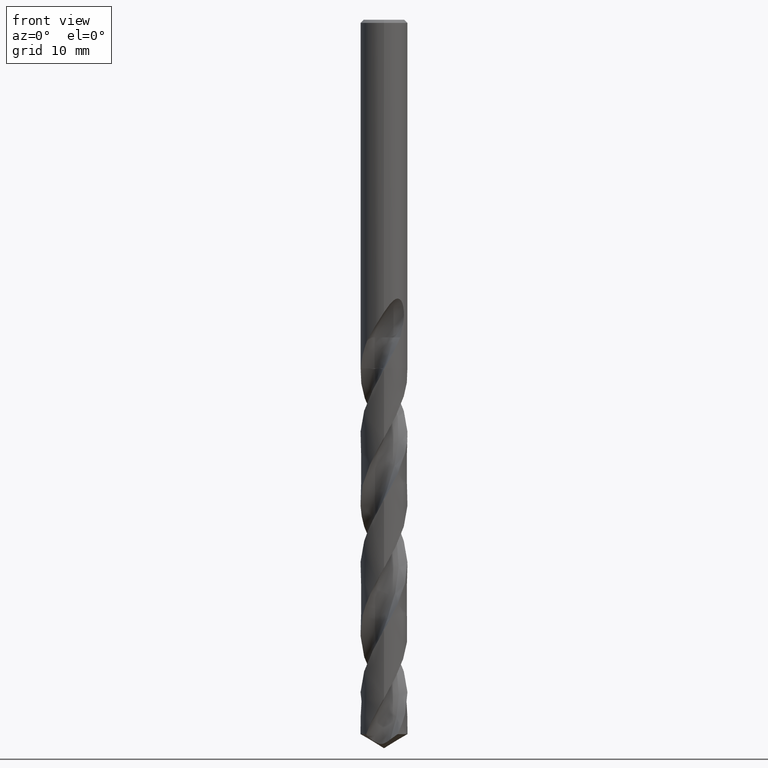
[diagram: clean part render]
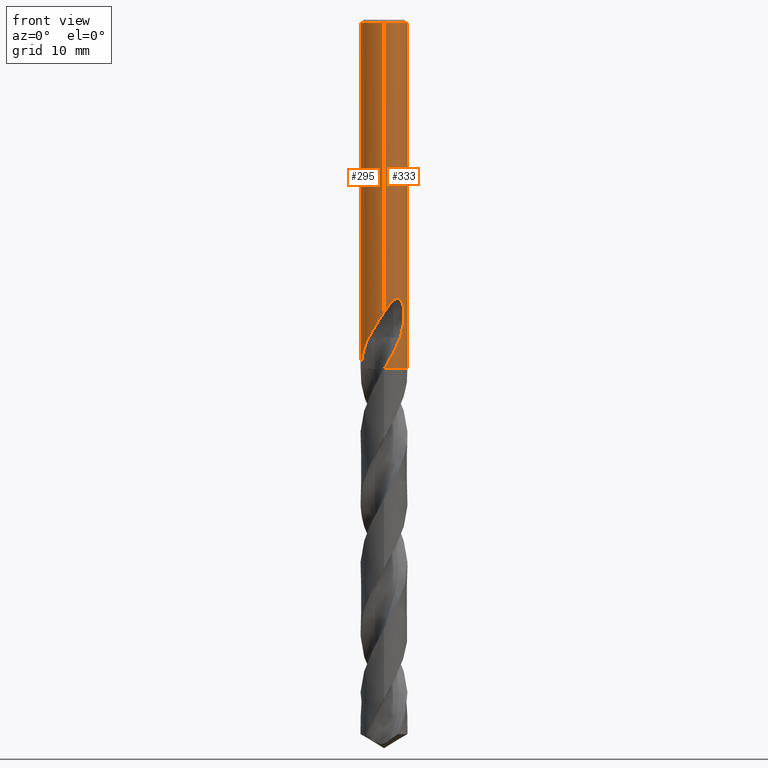
[diagram: same view with one multi-face feature highlighted, each face labeled with its STEP entity id]
A machine part, front view. The highlighted faces form ONE feature: a constant-radius fillet chain: 2 tangent blend faces with common blend radius 3 mm. The faces share edges in the B-rep.
Their STEP definitions:
[1] entity #333 (Cylinder):
#307=EDGE_CURVE('',#611,#703,#831,.T.);
#309=EDGE_CURVE('',#539,#673,#833,.T.);
#333=ADVANCED_FACE('',(#860),#861,.T.);
#377=EDGE_CURVE('',#409,#529,#907,.T.);
#387=EDGE_CURVE('',#633,#393,#917,.T.);
#393=VERTEX_POINT('',#923);
#409=VERTEX_POINT('',#943);
#413=EDGE_CURVE('',#611,#695,#947,.T.);
#425=EDGE_CURVE('',#485,#755,#959,.T.);
#439=EDGE_CURVE('',#737,#673,#975,.T.);
#485=VERTEX_POINT('',#1025);
#505=VERTEX_POINT('',#1046);
#513=VERTEX_POINT('',#1054);
#525=EDGE_CURVE('',#695,#529,#1066,.T.);
#529=VERTEX_POINT('',#1070);
#539=VERTEX_POINT('',#1082);
#541=EDGE_CURVE('',#505,#513,#1084,.T.);
#549=EDGE_CURVE('',#393,#687,#1092,.T.);
#559=VERTEX_POINT('',#1102);
#573=EDGE_CURVE('',#687,#485,#1117,.T.);
#611=VERTEX_POINT('',#1157);
#629=VERTEX_POINT('',#1178);
#633=VERTEX_POINT('',#1182);
#665=EDGE_CURVE('',#539,#755,#1218,.T.);
#673=VERTEX_POINT('',#1228);
#679=EDGE_CURVE('',#629,#559,#1234,.T.);
#685=EDGE_CURVE('',#409,#505,#1242,.T.);
#687=VERTEX_POINT('',#1244);
#693=EDGE_CURVE('',#559,#703,#1250,.T.);
#695=VERTEX_POINT('',#1252);
#703=VERTEX_POINT('',#1263);
#727=EDGE_CURVE('',#737,#629,#1288,.T.);
#737=VERTEX_POINT('',#1298);
#751=EDGE_CURVE('',#513,#633,#1314,.T.);
#755=VERTEX_POINT('',#1318);
#831=CIRCLE('',#1751,3.0);
#833=CIRCLE('',#1754,3.0);
#860=FACE_OUTER_BOUND('',#2234,.T.);
#861=CYLINDRICAL_SURFACE('',#2235,3.0);
#907=LINE('',#2569,#2570);
#917=B_SPLINE_CURVE_WITH_KNOTS('',3,(#2595,#2596,#2597,#2598,#2599,#2600,#2601,#2602),.UNSPECIFIED.,.F.,.F.,(4,2,2,4),(8.17446522132897,8.48751487521068,8.80056452909239,9.43014514523744),.UNSPECIFIED.);
#923=CARTESIAN_POINT('',(1.33721006514658,2.68549236485056,-28.2901657003257));
#943=CARTESIAN_POINT('',(-5.79783325419715E-016,3.0,-29.0310253601033));
#947=B_SPLINE_CURVE_WITH_KNOTS('',3,(#2753,#2754,#2755,#2756,#2757,#2758,#2759,#2760,#2761,#2762,#2763,#2764),.UNSPECIFIED.,.F.,.F.,(4,2,2,2,2,4),(0.0,1.14067468414243,2.36104364645971,3.51415760025873,3.88085131149834,4.65908082273705),.UNSPECIFIED.);
#959=B_SPLINE_CURVE_WITH_KNOTS('',3,(#2910,#2911,#2912,#2913,#2914,#2915,#2916,#2917,#2918,#2919,#2920,#2921,#2922,#2923,#2924,#2925,#2926,#2927,#2928,#2929,#2930,#2931,#2932,#2933,#2934,#2935,#2936),.UNSPECIFIED.,.F.,.F.,(4,2,3,2,2,2,2,2,2,2,2,2,4),(-0.54422824842136,-0.27211412421068,0.0,0.272114124210678,0.544228248421357,0.817906359646674,1.09158447087199,1.36255924571499,1.63353402055798,1.90530456554772,2.17707511053746,2.4488456555272,2.72061620051693),.UNSPECIFIED.);
#975=LINE('',#3751,#3752);
#1025=CARTESIAN_POINT('',(0.799431726384364,2.89152363207533,-26.000000276873));
#1046=CARTESIAN_POINT('',(0.29010312703583,2.98594041730307,-28.9998328990228));
#1054=CARTESIAN_POINT('',(0.873560781758957,2.86999852971612,-27.3198931596091));
#1066=B_SPLINE_CURVE_WITH_KNOTS('',3,(#5981,#5982,#5983,#5984,#5985,#5986,#5987,#5988,#5989,#5990,#5991,#5992,#5993,#5994,#5995,#5996,#5997,#5998,#5999,#6000,#6001,#6002,#6003,#6004,#6005,#6006,#6007,#6008,#6009,#6010),.UNSPECIFIED.,.F.,.F.,(4,2,2,2,2,2,2,2,2,2,2,2,2,2,4),(0.0,1.46983380852507,2.27239678300719,2.99931696905278,3.84382348162455,4.85826881796676,5.73750597834066,6.13594597323084,6.42715702904334,6.70272785476211,7.05230587546433,7.56375269950022,8.29083449400262,8.7666328713728,9.26666465795257),.UNSPECIFIED.);
#1070=CARTESIAN_POINT('',(-8.87362909931036E-013,3.0,-37.3520632578571));
#1082=CARTESIAN_POINT('',(0.0,3.0,-0.399999999999999));
#1084=ELLIPSE('',#6339,9.14398372010932,3.0);
#1092=LINE('',#6368,#6369);
#1102=CARTESIAN_POINT('',(2.08523202784716,-2.15680490310098,-40.541));
#1117=B_SPLINE_CURVE_WITH_KNOTS('',3,(#6654,#6655,#6656,#6657,#6658,#6659,#6660,#6661),.UNSPECIFIED.,.F.,.F.,(4,2,2,4),(0.629580638580865,1.25916127716173,1.57221094126725,1.88526060537277),.UNSPECIFIED.);
#1157=CARTESIAN_POINT('',(2.98273810029039,0.321361828903342,-44.5));
#1178=CARTESIAN_POINT('',(2.44092648989433,-1.74409801070127,-38.8982593158529));
#1182=CARTESIAN_POINT('',(0.873560781758956,2.86999852971612,-28.7587351791531));
#1218=LINE('',#9556,#9557);
#1228=CARTESIAN_POINT('',(3.67381906146713E-016,-3.0,-0.399999999999999));
#1234=B_SPLINE_CURVE_WITH_KNOTS('',3,(#9578,#9579,#9580,#9581),.UNSPECIFIED.,.F.,.F.,(4,4),(0.0,1.72415970165412),.UNSPECIFIED.);
#1242=B_SPLINE_CURVE_WITH_KNOTS('',3,(#9590,#9591,#9592,#9593,#9594,#9595,#9596,#9597,#9598,#9599,#9600,#9601,#9602,#9603,#9604,#9605),.UNSPECIFIED.,.F.,.F.,(4,2,2,2,2,2,2,4),(5.66023402257373,6.29060333517104,6.60504483258975,6.91948633000846,7.23392782742717,7.54836932484587,7.86141901111221,8.17446869737855),.UNSPECIFIED.);
#1244=CARTESIAN_POINT('',(1.33721006514658,2.68549236485057,-26.5150484364821));
#1250=B_SPLINE_CURVE_WITH_KNOTS('',3,(#9663,#9664,#9665,#9666,#9667,#9668,#9669,#9670,#9671,#9672,#9673,#9674),.UNSPECIFIED.,.F.,.F.,(4,2,2,2,2,4),(0.0,0.59950892662962,1.14112145611253,1.94427165933441,3.13841279620025,4.33640038811037),.UNSPECIFIED.);
#1252=CARTESIAN_POINT('',(1.91164679377282,2.31205677608879,-40.541));
#1263=CARTESIAN_POINT('',(0.0675089723868008,-2.99924032692402,-44.5));
#1288=B_SPLINE_CURVE_WITH_KNOTS('',3,(#10533,#10534,#10535,#10536,#10537,#10538,#10539,#10540,#10541,#10542,#10543,#10544,#10545,#10546,#10547,#10548,#10549,#10550,#10551,#10552,#10553,#10554,#10555,#10556,#10557,#10558,#10559,#10560,#10561,#10562),.UNSPECIFIED.,.F.,.F.,(4,2,2,2,2,2,2,2,2,2,2,2,2,2,4),(0.0,1.46983380852507,2.27239678300718,2.99931696905273,3.8438234816247,4.8582688179671,5.73750597834119,6.13594597323147,6.42715702904403,6.70272785476287,7.05230587546514,7.56375269950054,8.29083449400176,8.76663287137125,9.26666465795035),.UNSPECIFIED.);
#1298=CARTESIAN_POINT('',(8.89472333677824E-013,-3.0,-37.3520632578571));
#1314=LINE('',#10840,#10841);
#1318=CARTESIAN_POINT('',(3.1168337840855E-015,3.0,-27.0232688117743));
#1751=AXIS2_PLACEMENT_3D('',#11604,#11605,#11606);
#1754=AXIS2_PLACEMENT_3D('',#11607,#11608,#11609);
#2234=EDGE_LOOP('',(#11637,#11638,#11639,#11640,#11641,#11642,#11643,#11644,#11645,#11646,#11647,#11648,#11649,#11650,#11651,#11652,#11653));
#2235=AXIS2_PLACEMENT_3D('',#11654,#11655,#11656);
#2569=CARTESIAN_POINT('',(-3.67381906146713E-016,3.0,-40.25));
#2570=VECTOR('',#11679,1.0);
#2595=CARTESIAN_POINT('',(0.600330703923334,2.93932016730517,-28.9050364278969));
#2596=CARTESIAN_POINT('',(0.700343038443486,2.91889351228921,-28.8631861412044));
#2597=CARTESIAN_POINT('',(0.795685584213128,2.8940165604303,-28.8114119954011));
#2598=CARTESIAN_POINT('',(0.971352589628262,2.83988055167306,-28.692706383359));
#2599=CARTESIAN_POINT('',(1.0516835476539,2.81066216129401,-28.6257659914415));
#2600=CARTESIAN_POINT('',(1.26543925920527,2.72440179743877,-28.4122346680481));
#2601=CARTESIAN_POINT('',(1.3899740959159,2.66030349847411,-28.2319488826214));
#2602=CARTESIAN_POINT('',(1.47371594109741,2.61307507066968,-28.0321377817992));
#2753=CARTESIAN_POINT('',(2.98273810029039,0.321361828903336,-44.5));
#2754=CARTESIAN_POINT('',(2.96262964440007,0.507999606410196,-44.1693446498703));
#2755=CARTESIAN_POINT('',(2.925294928557,0.690599195003813,-43.8371664418726));
#2756=CARTESIAN_POINT('',(2.81443893102137,1.05743471168353,-43.1607520259877));
#2757=CARTESIAN_POINT('',(2.74127339107533,1.23403217542306,-42.8397163678623));
#2758=CARTESIAN_POINT('',(2.56509382593786,1.56642860687534,-42.1726662415295));
#2759=CARTESIAN_POINT('',(2.46672337956167,1.71587135229155,-41.8403239874505));
#2760=CARTESIAN_POINT('',(2.32847526912318,1.89238721633558,-41.4206871806742));
#2761=CARTESIAN_POINT('',(2.29449527389968,1.9337955683818,-41.3165648820369));
#2762=CARTESIAN_POINT('',(2.15958258673837,2.08697220240877,-40.9681005363908));
#2763=CARTESIAN_POINT('',(2.04835370047521,2.19902524391063,-40.7498067294201));
#2764=CARTESIAN_POINT('',(1.91164679377282,2.31205677608879,-40.541));
#2910=CARTESIAN_POINT('',(0.665621182276714,2.92522622060321,-25.8140957881762));
#2911=CARTESIAN_POINT('',(0.728850563417096,2.91083867849353,-25.877518087557));
#2912=CARTESIAN_POINT('',(0.783900459387161,2.89602337967411,-25.9578702196133));
#2913=CARTESIAN_POINT('',(0.857188692916628,2.87518328740958,-26.1345580124299));
#2914=CARTESIAN_POINT('',(0.875400981188567,2.86943777108584,-26.2309373045166));
#2915=CARTESIAN_POINT('',(0.875400981188567,2.86943777108584,-26.3216420125868));
#2916=CARTESIAN_POINT('',(0.875400981188567,2.86943777108584,-26.412346720657));
#2917=CARTESIAN_POINT('',(0.857188692916629,2.87518328740958,-26.5087260127437));
#2918=CARTESIAN_POINT('',(0.783900459387161,2.89602337967411,-26.6854138055602));
#2919=CARTESIAN_POINT('',(0.728850563417096,2.91083867849353,-26.7657659376165));
#2920=CARTESIAN_POINT('',(0.60202838769231,2.93969645569731,-26.8929750586276));
#2921=CARTESIAN_POINT('',(0.521477859529299,2.95568533572518,-26.9483797636259));
#2922=CARTESIAN_POINT('',(0.344299091050148,2.98152194310932,-27.0221641076746));
#2923=CARTESIAN_POINT('',(0.247628172090375,2.99115403786358,-27.0405166027747));
#2924=CARTESIAN_POINT('',(0.0663244946631876,3.00062654348629,-27.0405166027747));
#2925=CARTESIAN_POINT('',(-0.0299285908853346,3.00115720326599,-27.0224875186921));
#2926=CARTESIAN_POINT('',(-0.206881310600536,2.99416773126077,-26.949244373347));
#2927=CARTESIAN_POINT('',(-0.287593937381961,2.98687212067831,-26.8940404490632));
#2928=CARTESIAN_POINT('',(-0.415200117492863,2.97182576996222,-26.7666805419979));
#2929=CARTESIAN_POINT('',(-0.470604049431396,2.96309385107775,-26.6859121102136));
#2930=CARTESIAN_POINT('',(-0.544183869965539,2.95046729924835,-26.5086992019516));
#2931=CARTESIAN_POINT('',(-0.562348199187247,2.94682278104247,-26.41223219425));
#2932=CARTESIAN_POINT('',(-0.562348199187247,2.94682278104247,-26.2310518309235));
#2933=CARTESIAN_POINT('',(-0.54418386996554,2.95046729924835,-26.134584823222));
#2934=CARTESIAN_POINT('',(-0.4706040494314,2.96309385107775,-25.95737191496));
#2935=CARTESIAN_POINT('',(-0.415200117492863,2.97182576996222,-25.8766034831756));
#2936=CARTESIAN_POINT('',(-0.351303479704285,2.97935997575782,-25.812830162452));
#3751=CARTESIAN_POINT('',(3.67381906146713E-016,-3.0,-40.25));
#3752=VECTOR('',#11765,1.0);
#5981=CARTESIAN_POINT('',(1.91164679377282,2.3120567760888,-40.541));
#5982=CARTESIAN_POINT('',(1.71375575951833,2.47567635717405,-40.1237309200278));
#5983=CARTESIAN_POINT('',(1.486225837873,2.62112280809457,-39.7347016240395));
#5984=CARTESIAN_POINT('',(1.08948145585004,2.79939790357085,-39.0848014893283));
#5985=CARTESIAN_POINT('',(0.946714273149377,2.85068087950859,-38.8561448922827));
#5986=CARTESIAN_POINT('',(0.670335042945774,2.92732506647418,-38.4135249483925));
#5987=CARTESIAN_POINT('',(0.5379570310875,2.95440327743712,-38.2016247371714));
#5988=CARTESIAN_POINT('',(0.251414391582756,2.99348382974488,-37.7449234783706));
#5989=CARTESIAN_POINT('',(0.0948562800467957,3.00265887070915,-37.4965476035652));
#5990=CARTESIAN_POINT('',(-0.252819179254607,2.99534565963354,-36.9651896548675));
#5991=CARTESIAN_POINT('',(-0.458955583756506,2.97272600277571,-36.6628411750703));
#5992=CARTESIAN_POINT('',(-0.856462988645535,2.88137700708898,-36.1642893885912));
#5993=CARTESIAN_POINT('',(-1.07638794081267,2.81178060567446,-35.9210156171277));
#5994=CARTESIAN_POINT('',(-1.40924217176591,2.65091070729522,-35.6932142640234));
#5995=CARTESIAN_POINT('',(-1.51941910433013,2.5901786323122,-35.6369154430279));
#5996=CARTESIAN_POINT('',(-1.71247442146329,2.46512979296181,-35.5936678633664));
#5997=CARTESIAN_POINT('',(-1.79165724831738,2.40818161234519,-35.592860332513));
#5998=CARTESIAN_POINT('',(-1.93913954004226,2.29088024762936,-35.6307109988692));
#5999=CARTESIAN_POINT('',(-2.00364093548821,2.23422602999107,-35.6661993543014));
#6000=CARTESIAN_POINT('',(-2.1349005591831,2.11007273708381,-35.7772383317337));
#6001=CARTESIAN_POINT('',(-2.19562720141664,2.04573338410109,-35.8592206391473));
#6002=CARTESIAN_POINT('',(-2.32001499988605,1.90524369772968,-36.0837136544858));
#6003=CARTESIAN_POINT('',(-2.37946988853635,1.82873701452882,-36.2502211307941));
#6004=CARTESIAN_POINT('',(-2.4912726063027,1.67511256148953,-36.7160905297007));
#6005=CARTESIAN_POINT('',(-2.53169187388303,1.60967593575421,-37.0478764713718));
#6006=CARTESIAN_POINT('',(-2.5516978158648,1.57767585152545,-37.6619314380946));
#6007=CARTESIAN_POINT('',(-2.54699382472898,1.58547551567002,-37.9064790286728));
#6008=CARTESIAN_POINT('',(-2.51376896782865,1.63767237368775,-38.4027884481159));
#6009=CARTESIAN_POINT('',(-2.4841031145768,1.6836708063326,-38.6526821951794));
#6010=CARTESIAN_POINT('',(-2.44092648989434,1.74409801070127,-38.8982593158529));
#6339=AXIS2_PLACEMENT_3D('',#11836,#11837,#11838);
#6368=CARTESIAN_POINT('',(1.33721006514658,2.68549236485056,-27.4026070684039));
#6369=VECTOR('',#11839,1.0);
#6654=CARTESIAN_POINT('',(1.47371594887933,2.61307506628085,-26.7730763684242));
#6655=CARTESIAN_POINT('',(1.38997410067862,2.66030349611674,-26.5732652606136));
#6656=CARTESIAN_POINT('',(1.2654392594963,2.72440179761724,-26.3929794688919));
#6657=CARTESIAN_POINT('',(1.05168354029617,2.81066216411606,-26.1794481382038));
#6658=CARTESIAN_POINT('',(0.971352579549231,2.83988055521709,-26.1125077441098));
#6659=CARTESIAN_POINT('',(0.795685568183073,2.89401656493242,-25.9938021282019));
#6660=CARTESIAN_POINT('',(0.700343019183212,2.91889351702519,-25.9420279807093));
#6661=CARTESIAN_POINT('',(0.600330681290245,2.93932017192779,-25.9001776926585));
#9556=CARTESIAN_POINT('',(-3.67381906146713E-016,3.0,-40.25));
#9557=VECTOR('',#11957,1.0);
#9578=CARTESIAN_POINT('',(2.44092648994695,-1.74409801062763,-38.8982593158818));
#9579=CARTESIAN_POINT('',(2.34420896265217,-1.87945759075297,-39.4483742748423));
#9580=CARTESIAN_POINT('',(2.22763849090267,-2.01912415260341,-40.0017629451952));
#9581=CARTESIAN_POINT('',(2.08523202784716,-2.15680490310097,-40.541));
#9590=CARTESIAN_POINT('',(-1.53050642192579,2.58022287650581,-28.0319811255889));
#9591=CARTESIAN_POINT('',(-1.44691631248335,2.62980577312329,-28.2314887010961));
#9592=CARTESIAN_POINT('',(-1.32276760444366,2.69707077181617,-28.4113258593841));
#9593=CARTESIAN_POINT('',(-1.10973155101076,2.78826898930335,-28.6245951706909));
#9594=CARTESIAN_POINT('',(-1.02948996220254,2.81934349084513,-28.6916117853674));
#9595=CARTESIAN_POINT('',(-0.853932698223486,2.87738531454781,-28.8105216600777));
#9596=CARTESIAN_POINT('',(-0.758609991487904,2.90431263574779,-28.8624240602538));
#9597=CARTESIAN_POINT('',(-0.558469552260233,2.94934446690523,-28.9464055954533));
#9598=CARTESIAN_POINT('',(-0.45345704144638,2.96746268462387,-28.9785511641911));
#9599=CARTESIAN_POINT('',(-0.240810292537893,2.99223469602914,-29.0209924679526));
#9600=CARTESIAN_POINT('',(-0.133171317626829,2.99887501234033,-29.0312723335086));
#9601=CARTESIAN_POINT('',(0.0759830626177196,3.00085245803086,-29.0312723335086));
#9602=CARTESIAN_POINT('',(0.183273473896685,2.99629272230549,-29.0210815541729));
#9603=CARTESIAN_POINT('',(0.395439152728151,2.97573303917486,-28.9788816901513));
#9604=CARTESIAN_POINT('',(0.500318639064907,2.95974677710468,-28.9468871509919));
#9605=CARTESIAN_POINT('',(0.600330982089903,2.93932011049205,-28.9050368602192));
#9663=CARTESIAN_POINT('',(2.08523202784716,-2.15680490310097,-40.541));
#9664=CARTESIAN_POINT('',(2.0180329762615,-2.22177397582791,-40.7176291521816));
#9665=CARTESIAN_POINT('',(1.94545542333406,-2.28601361670368,-40.8976274258709));
#9666=CARTESIAN_POINT('',(1.79153643436237,-2.40813073859073,-41.2449071241646));
#9667=CARTESIAN_POINT('',(1.71686755769616,-2.46198638605419,-41.4013310306106));
#9668=CARTESIAN_POINT('',(1.51937244802069,-2.59062203440033,-41.8101311601484));
#9669=CARTESIAN_POINT('',(1.39712763842929,-2.65843768294719,-42.0552052872972));
#9670=CARTESIAN_POINT('',(1.08456134618211,-2.80469177727086,-42.6659093423474));
#9671=CARTESIAN_POINT('',(0.88778893419132,-2.87315094247835,-43.0325777091419));
#9672=CARTESIAN_POINT('',(0.48260503679309,-2.96825477979043,-43.765330816161));
#9673=CARTESIAN_POINT('',(0.275483221261776,-2.9945590989149,-44.1329294491143));
#9674=CARTESIAN_POINT('',(0.0675089723868081,-2.99924032692402,-44.5));
#10533=CARTESIAN_POINT('',(-1.91164679377282,-2.3120567760888,-40.541));
#10534=CARTESIAN_POINT('',(-1.71375575951833,-2.47567635717405,-40.1237309200278));
#10535=CARTESIAN_POINT('',(-1.486225837873,-2.62112280809456,-39.7347016240395));
#10536=CARTESIAN_POINT('',(-1.08948145585004,-2.79939790357085,-39.0848014893283));
#10537=CARTESIAN_POINT('',(-0.946714273149379,-2.85068087950859,-38.8561448922827));
#10538=CARTESIAN_POINT('',(-0.670335042945776,-2.92732506647418,-38.4135249483925));
#10539=CARTESIAN_POINT('',(-0.537957031087505,-2.95440327743712,-38.2016247371714));
#10540=CARTESIAN_POINT('',(-0.251414391582708,-2.99348382974489,-37.7449234783705));
#10541=CARTESIAN_POINT('',(-0.0948562800467715,-3.00265887070914,-37.4965476035652));
#10542=CARTESIAN_POINT('',(0.252819179254567,-2.99534565963354,-36.9651896548675));
#10543=CARTESIAN_POINT('',(0.45895558375649,-2.97272600277571,-36.6628411750704));
#10544=CARTESIAN_POINT('',(0.856462988645552,-2.88137700708898,-36.1642893885912));
#10545=CARTESIAN_POINT('',(1.07638794081267,-2.81178060567445,-35.9210156171277));
#10546=CARTESIAN_POINT('',(1.4092421717659,-2.65091070729523,-35.6932142640234));
#10547=CARTESIAN_POINT('',(1.51941910433013,-2.5901786323122,-35.6369154430279));
#10548=CARTESIAN_POINT('',(1.71247442146329,-2.46512979296182,-35.5936678633664));
#10549=CARTESIAN_POINT('',(1.79165724831738,-2.40818161234519,-35.592860332513));
#10550=CARTESIAN_POINT('',(1.93913954004225,-2.29088024762936,-35.6307109988692));
#10551=CARTESIAN_POINT('',(2.0036409354882,-2.23422602999107,-35.6661993543014));
#10552=CARTESIAN_POINT('',(2.13490055918309,-2.11007273708382,-35.7772383317337));
#10553=CARTESIAN_POINT('',(2.19562720141663,-2.0457333841011,-35.8592206391473));
#10554=CARTESIAN_POINT('',(2.32001499988599,-1.90524369772975,-36.0837136544857));
#10555=CARTESIAN_POINT('',(2.37946988853631,-1.82873701452887,-36.2502211307939));
#10556=CARTESIAN_POINT('',(2.49127260630271,-1.67511256148952,-36.7160905297008));
#10557=CARTESIAN_POINT('',(2.53169187388303,-1.6096759357542,-37.0478764713719));
#10558=CARTESIAN_POINT('',(2.55169781586479,-1.57767585152545,-37.6619314380946));
#10559=CARTESIAN_POINT('',(2.54699382472898,-1.58547551567002,-37.9064790286728));
#10560=CARTESIAN_POINT('',(2.51376896782865,-1.63767237368775,-38.4027884481159));
#10561=CARTESIAN_POINT('',(2.48410311457679,-1.6836708063326,-38.6526821951794));
#10562=CARTESIAN_POINT('',(2.44092648989433,-1.74409801070127,-38.8982593158529));
#10840=CARTESIAN_POINT('',(0.873560781758957,2.86999852971612,-28.0393141693811));
#10841=VECTOR('',#12060,1.0);
#11604=CARTESIAN_POINT('',(0.0,0.0,-44.5));
#11605=DIRECTION('',(0.0,0.0,-1.0));
#11606=DIRECTION('',(0.0,1.0,0.0));
#11607=CARTESIAN_POINT('',(0.0,0.0,-0.399999999999999));
#11608=DIRECTION('',(0.0,0.0,-1.0));
#11609=DIRECTION('',(0.0,1.0,0.0));
#11637=ORIENTED_EDGE('',*,*,#665,.F.);
#11638=ORIENTED_EDGE('',*,*,#309,.T.);
#11639=ORIENTED_EDGE('',*,*,#439,.F.);
#11640=ORIENTED_EDGE('',*,*,#727,.T.);
#11641=ORIENTED_EDGE('',*,*,#679,.T.);
#11642=ORIENTED_EDGE('',*,*,#693,.T.);
#11643=ORIENTED_EDGE('',*,*,#307,.F.);
#11644=ORIENTED_EDGE('',*,*,#413,.T.);
#11645=ORIENTED_EDGE('',*,*,#525,.T.);
#11646=ORIENTED_EDGE('',*,*,#377,.F.);
#11647=ORIENTED_EDGE('',*,*,#685,.T.);
#11648=ORIENTED_EDGE('',*,*,#541,.T.);
#11649=ORIENTED_EDGE('',*,*,#751,.T.);
#11650=ORIENTED_EDGE('',*,*,#387,.T.);
#11651=ORIENTED_EDGE('',*,*,#549,.T.);
#11652=ORIENTED_EDGE('',*,*,#573,.T.);
#11653=ORIENTED_EDGE('',*,*,#425,.T.);
#11654=CARTESIAN_POINT('',(0.0,0.0,-40.25));
#11655=DIRECTION('',(-0.0,-0.0,1.0));
#11656=DIRECTION('',(0.0,1.0,0.0));
#11679=DIRECTION('',(0.0,0.0,-1.0));
#11765=DIRECTION('',(-0.0,-0.0,1.0));
#11836=CARTESIAN_POINT('',(0.0,0.0,-29.8351219173269));
#11837=DIRECTION('',(0.944648353914092,0.0,-0.328084573619969));
#11838=DIRECTION('',(0.328084573619969,-0.0,0.944648353914092));
#11839=DIRECTION('',(-0.0,-0.0,1.0));
#11957=DIRECTION('',(0.0,0.0,-1.0));
#12060=DIRECTION('',(0.0,0.0,-1.0));
[2] entity #295 (Cylinder):
#295=ADVANCED_FACE('',(#818),#819,.T.);
#339=VERTEX_POINT('',#867);
#345=VERTEX_POINT('',#874);
#361=EDGE_CURVE('',#755,#345,#890,.T.);
#371=VERTEX_POINT('',#900);
#377=EDGE_CURVE('',#409,#529,#907,.T.);
#381=EDGE_CURVE('',#419,#339,#911,.T.);
#389=VERTEX_POINT('',#919);
#391=EDGE_CURVE('',#529,#575,#921,.T.);
#401=EDGE_CURVE('',#711,#409,#933,.T.);
#409=VERTEX_POINT('',#943);
#411=VERTEX_POINT('',#945);
#419=VERTEX_POINT('',#953);
#439=EDGE_CURVE('',#737,#673,#975,.T.);
#453=EDGE_CURVE('',#371,#389,#989,.T.);
#461=EDGE_CURVE('',#673,#539,#998,.T.);
#465=EDGE_CURVE('',#741,#411,#1002,.T.);
#481=EDGE_CURVE('',#411,#737,#1021,.T.);
#521=VERTEX_POINT('',#1062);
#529=VERTEX_POINT('',#1070);
#539=VERTEX_POINT('',#1082);
#551=VERTEX_POINT('',#1094);
#553=EDGE_CURVE('',#551,#371,#1096,.T.);
#575=VERTEX_POINT('',#1119);
#583=EDGE_CURVE('',#345,#521,#1127,.T.);
#613=EDGE_CURVE('',#389,#711,#1159,.T.);
#615=EDGE_CURVE('',#741,#339,#1161,.T.);
#665=EDGE_CURVE('',#539,#755,#1218,.T.);
#673=VERTEX_POINT('',#1228);
#675=EDGE_CURVE('',#575,#419,#1230,.T.);
#711=VERTEX_POINT('',#1271);
#717=EDGE_CURVE('',#521,#551,#1277,.T.);
#737=VERTEX_POINT('',#1298);
#741=VERTEX_POINT('',#1302);
#755=VERTEX_POINT('',#1318);
#818=FACE_OUTER_BOUND('',#1513,.T.);
#819=CYLINDRICAL_SURFACE('',#1514,3.0);
#867=CARTESIAN_POINT('',(-0.0675089723867932,2.99924032692402,-44.5));
#874=CARTESIAN_POINT('',(-0.486378944383047,2.96031003823262,-26.6432837483006));
#890=B_SPLINE_CURVE_WITH_KNOTS('',3,(#2409,#2410,#2411,#2412,#2413,#2414,#2415,#2416,#2417,#2418,#2419,#2420,#2421,#2422,#2423,#2424,#2425,#2426,#2427,#2428,#2429,#2430,#2431,#2432,#2433,#2434,#2435),.UNSPECIFIED.,.F.,.F.,(4,2,3,2,2,2,2,2,2,2,2,2,4),(-0.54422824842136,-0.27211412421068,0.0,0.272114124210678,0.544228248421357,0.817906359646674,1.09158447087199,1.36255924571499,1.63353402055798,1.90530456554772,2.17707511053746,2.4488456555272,2.72061620051693),.UNSPECIFIED.);
#900=CARTESIAN_POINT('',(2.35719168458961E-016,3.0,-27.5000801551881));
#907=LINE('',#2569,#2570);
#911=B_SPLINE_CURVE_WITH_KNOTS('',3,(#2576,#2577,#2578,#2579,#2580,#2581,#2582,#2583,#2584,#2585,#2586,#2587),.UNSPECIFIED.,.F.,.F.,(4,2,2,2,2,4),(0.0,0.599508926334341,1.14112145422074,1.94427165795057,3.13841279535141,4.33640038784418),.UNSPECIFIED.);
#919=CARTESIAN_POINT('',(-3.67381906146713E-016,3.0,-27.7128911336578));
#921=B_SPLINE_CURVE_WITH_KNOTS('',3,(#2607,#2608,#2609,#2610,#2611,#2612,#2613,#2614,#2615,#2616,#2617,#2618,#2619,#2620,#2621,#2622,#2623,#2624,#2625,#2626,#2627,#2628,#2629,#2630,#2631,#2632,#2633,#2634,#2635,#2636),.UNSPECIFIED.,.F.,.F.,(4,2,2,2,2,2,2,2,2,2,2,2,2,2,4),(0.0,1.46983380852507,2.27239678300719,2.99931696905278,3.84382348162455,4.85826881796676,5.73750597834066,6.13594597323084,6.42715702904334,6.70272785476211,7.05230587546433,7.56375269950022,8.29083449400262,8.7666328713728,9.26666465795257),.UNSPECIFIED.);
#933=B_SPLINE_CURVE_WITH_KNOTS('',3,(#2650,#2651,#2652,#2653,#2654,#2655,#2656,#2657,#2658,#2659,#2660,#2661,#2662,#2663,#2664,#2665),.UNSPECIFIED.,.F.,.F.,(4,2,2,2,2,2,2,4),(5.66023402257373,6.29060333517104,6.60504483258975,6.91948633000846,7.23392782742717,7.54836932484587,7.86141901111221,8.17446869737855),.UNSPECIFIED.);
#943=CARTESIAN_POINT('',(-5.79783325419715E-016,3.0,-29.0310253601033));
#945=CARTESIAN_POINT('',(-1.91164679377282,-2.3120567760888,-40.541));
#953=CARTESIAN_POINT('',(-2.08523202784716,2.15680490310097,-40.541));
#975=LINE('',#3751,#3752);
#989=LINE('',#3844,#3845);
#998=CIRCLE('',#4661,3.0);
#1002=B_SPLINE_CURVE_WITH_KNOTS('',3,(#4670,#4671,#4672,#4673,#4674,#4675,#4676,#4677,#4678,#4679,#4680,#4681),.UNSPECIFIED.,.F.,.F.,(4,2,2,2,2,4),(0.0,1.14067468417409,2.36104365694926,3.51415760440589,3.88085134247531,4.65908075408976),.UNSPECIFIED.);
#1021=B_SPLINE_CURVE_WITH_KNOTS('',3,(#5025,#5026,#5027,#5028,#5029,#5030,#5031,#5032,#5033,#5034,#5035,#5036,#5037,#5038,#5039,#5040,#5041,#5042,#5043,#5044,#5045,#5046,#5047,#5048,#5049,#5050,#5051,#5052,#5053,#5054),.UNSPECIFIED.,.F.,.F.,(4,2,2,2,2,2,2,2,2,2,2,2,2,2,4),(0.0,1.46983380852507,2.27239678300718,2.99931696905273,3.8438234816247,4.8582688179671,5.73750597834119,6.13594597323147,6.42715702904403,6.70272785476287,7.05230587546514,7.56375269950054,8.29083449400176,8.76663287137125,9.26666465795035),.UNSPECIFIED.);
#1062=CARTESIAN_POINT('',(-0.562333990228013,2.94682549253162,-26.3171221986971));
#1070=CARTESIAN_POINT('',(-8.87362909931036E-013,3.0,-37.3520632578571));
#1082=CARTESIAN_POINT('',(0.0,3.0,-0.399999999999999));
#1094=CARTESIAN_POINT('',(-1.0350734039088,2.81578107254819,-26.3171221986971));
#1096=B_SPLINE_CURVE_WITH_KNOTS('',3,(#6374,#6375,#6376,#6377,#6378,#6379,#6380,#6381,#6382,#6383,#6384,#6385,#6386,#6387),.UNSPECIFIED.,.F.,.F.,(4,2,2,2,2,2,4),(3.16026050654945,3.61086409539206,4.06146768423468,4.5120712730773,4.95991823802074,5.40776520296419,5.86282890530593),.UNSPECIFIED.);
#1119=CARTESIAN_POINT('',(-2.44092648989433,1.74409801070127,-38.8982593158529));
#1127=B_SPLINE_CURVE_WITH_KNOTS('',3,(#6701,#6702,#6703,#6704,#6705,#6706,#6707,#6708,#6709,#6710,#6711,#6712,#6713,#6714,#6715,#6716,#6717,#6718,#6719,#6720,#6721,#6722,#6723,#6724,#6725,#6726,#6727),.UNSPECIFIED.,.F.,.F.,(4,2,3,2,2,2,2,2,2,2,2,2,4),(-0.54422824842136,-0.27211412421068,0.0,0.272114124210678,0.544228248421357,0.817906359646674,1.09158447087199,1.36255924571499,1.63353402055798,1.90530456554772,2.17707511053746,2.4488456555272,2.72061620051693),.UNSPECIFIED.);
#1159=ELLIPSE('',#7914,3.34478529612858,3.0);
#1161=CIRCLE('',#7917,3.0);
#1218=LINE('',#9556,#9557);
#1228=CARTESIAN_POINT('',(3.67381906146713E-016,-3.0,-0.399999999999999));
#1230=B_SPLINE_CURVE_WITH_KNOTS('',3,(#9570,#9571,#9572,#9573),.UNSPECIFIED.,.F.,.F.,(4,4),(0.0,1.72415970165418),.UNSPECIFIED.);
#1271=CARTESIAN_POINT('',(-1.337052752443,2.68557069115386,-28.3720803908795));
#1277=CIRCLE('',#10495,3.0);
#1298=CARTESIAN_POINT('',(8.89472333677824E-013,-3.0,-37.3520632578571));
#1302=CARTESIAN_POINT('',(-2.98273810029039,-0.321361828903332,-44.5));
#1318=CARTESIAN_POINT('',(3.1168337840855E-015,3.0,-27.0232688117743));
#1513=EDGE_LOOP('',(#11584,#11585,#11586,#11587,#11588,#11589,#11590,#11591,#11592,#11593,#11594,#11595,#11596,#11597,#11598,#11599,#11600));
#1514=AXIS2_PLACEMENT_3D('',#11601,#11602,#11603);
#2409=CARTESIAN_POINT('',(0.665621182276714,2.92522622060321,-25.8140957881762));
#2410=CARTESIAN_POINT('',(0.728850563417096,2.91083867849353,-25.877518087557));
#2411=CARTESIAN_POINT('',(0.783900459387161,2.89602337967411,-25.9578702196133));
#2412=CARTESIAN_POINT('',(0.857188692916628,2.87518328740958,-26.1345580124299));
#2413=CARTESIAN_POINT('',(0.875400981188567,2.86943777108584,-26.2309373045166));
#2414=CARTESIAN_POINT('',(0.875400981188567,2.86943777108584,-26.3216420125868));
#2415=CARTESIAN_POINT('',(0.875400981188567,2.86943777108584,-26.412346720657));
#2416=CARTESIAN_POINT('',(0.857188692916629,2.87518328740958,-26.5087260127437));
#2417=CARTESIAN_POINT('',(0.783900459387161,2.89602337967411,-26.6854138055602));
#2418=CARTESIAN_POINT('',(0.728850563417096,2.91083867849353,-26.7657659376165));
#2419=CARTESIAN_POINT('',(0.60202838769231,2.93969645569731,-26.8929750586276));
#2420=CARTESIAN_POINT('',(0.521477859529299,2.95568533572518,-26.9483797636259));
#2421=CARTESIAN_POINT('',(0.344299091050148,2.98152194310932,-27.0221641076746));
#2422=CARTESIAN_POINT('',(0.247628172090375,2.99115403786358,-27.0405166027747));
#2423=CARTESIAN_POINT('',(0.0663244946631876,3.00062654348629,-27.0405166027747));
#2424=CARTESIAN_POINT('',(-0.0299285908853346,3.00115720326599,-27.0224875186921));
#2425=CARTESIAN_POINT('',(-0.206881310600536,2.99416773126077,-26.949244373347));
#2426=CARTESIAN_POINT('',(-0.287593937381961,2.98687212067831,-26.8940404490632));
#2427=CARTESIAN_POINT('',(-0.415200117492863,2.97182576996222,-26.7666805419979));
#2428=CARTESIAN_POINT('',(-0.470604049431396,2.96309385107775,-26.6859121102136));
#2429=CARTESIAN_POINT('',(-0.544183869965539,2.95046729924835,-26.5086992019516));
#2430=CARTESIAN_POINT('',(-0.562348199187247,2.94682278104247,-26.41223219425));
#2431=CARTESIAN_POINT('',(-0.562348199187247,2.94682278104247,-26.2310518309235));
#2432=CARTESIAN_POINT('',(-0.54418386996554,2.95046729924835,-26.134584823222));
#2433=CARTESIAN_POINT('',(-0.4706040494314,2.96309385107775,-25.95737191496));
#2434=CARTESIAN_POINT('',(-0.415200117492863,2.97182576996222,-25.8766034831756));
#2435=CARTESIAN_POINT('',(-0.351303479704285,2.97935997575782,-25.812830162452));
#2569=CARTESIAN_POINT('',(-3.67381906146713E-016,3.0,-40.25));
#2570=VECTOR('',#11679,1.0);
#2576=CARTESIAN_POINT('',(-2.08523202784716,2.15680490310097,-40.541));
#2577=CARTESIAN_POINT('',(-2.0180329762946,2.22177397579591,-40.7176291520946));
#2578=CARTESIAN_POINT('',(-1.94545542336689,2.28601361667764,-40.8976274257969));
#2579=CARTESIAN_POINT('',(-1.79153643451211,2.40813073847194,-41.2449071238267));
#2580=CARTESIAN_POINT('',(-1.71686755805418,2.46198638579236,-41.4013310298501));
#2581=CARTESIAN_POINT('',(-1.51937244864606,2.59062203403551,-41.8101311588828));
#2582=CARTESIAN_POINT('',(-1.39712763901247,2.6584376826451,-42.0552052861394));
#2583=CARTESIAN_POINT('',(-1.08456134663784,2.80469177710105,-42.665909341484));
#2584=CARTESIAN_POINT('',(-0.88778893454071,2.87315094237684,-43.0325777085026));
#2585=CARTESIAN_POINT('',(-0.48260503697004,2.96825477976851,-43.7653308158484));
#2586=CARTESIAN_POINT('',(-0.275483221346349,2.994559098913,-44.132929448965));
#2587=CARTESIAN_POINT('',(-0.0675089723867925,2.99924032692402,-44.5));
#2607=CARTESIAN_POINT('',(1.91164679377282,2.3120567760888,-40.541));
#2608=CARTESIAN_POINT('',(1.71375575951833,2.47567635717405,-40.1237309200278));
#2609=CARTESIAN_POINT('',(1.486225837873,2.62112280809457,-39.7347016240395));
#2610=CARTESIAN_POINT('',(1.08948145585004,2.79939790357085,-39.0848014893283));
#2611=CARTESIAN_POINT('',(0.946714273149377,2.85068087950859,-38.8561448922827));
#2612=CARTESIAN_POINT('',(0.670335042945774,2.92732506647418,-38.4135249483925));
#2613=CARTESIAN_POINT('',(0.5379570310875,2.95440327743712,-38.2016247371714));
#2614=CARTESIAN_POINT('',(0.251414391582756,2.99348382974488,-37.7449234783706));
#2615=CARTESIAN_POINT('',(0.0948562800467957,3.00265887070915,-37.4965476035652));
#2616=CARTESIAN_POINT('',(-0.252819179254607,2.99534565963354,-36.9651896548675));
#2617=CARTESIAN_POINT('',(-0.458955583756506,2.97272600277571,-36.6628411750703));
#2618=CARTESIAN_POINT('',(-0.856462988645535,2.88137700708898,-36.1642893885912));
#2619=CARTESIAN_POINT('',(-1.07638794081267,2.81178060567446,-35.9210156171277));
#2620=CARTESIAN_POINT('',(-1.40924217176591,2.65091070729522,-35.6932142640234));
#2621=CARTESIAN_POINT('',(-1.51941910433013,2.5901786323122,-35.6369154430279));
#2622=CARTESIAN_POINT('',(-1.71247442146329,2.46512979296181,-35.5936678633664));
#2623=CARTESIAN_POINT('',(-1.79165724831738,2.40818161234519,-35.592860332513));
#2624=CARTESIAN_POINT('',(-1.93913954004226,2.29088024762936,-35.6307109988692));
#2625=CARTESIAN_POINT('',(-2.00364093548821,2.23422602999107,-35.6661993543014));
#2626=CARTESIAN_POINT('',(-2.1349005591831,2.11007273708381,-35.7772383317337));
#2627=CARTESIAN_POINT('',(-2.19562720141664,2.04573338410109,-35.8592206391473));
#2628=CARTESIAN_POINT('',(-2.32001499988605,1.90524369772968,-36.0837136544858));
#2629=CARTESIAN_POINT('',(-2.37946988853635,1.82873701452882,-36.2502211307941));
#2630=CARTESIAN_POINT('',(-2.4912726063027,1.67511256148953,-36.7160905297007));
#2631=CARTESIAN_POINT('',(-2.53169187388303,1.60967593575421,-37.0478764713718));
#2632=CARTESIAN_POINT('',(-2.5516978158648,1.57767585152545,-37.6619314380946));
#2633=CARTESIAN_POINT('',(-2.54699382472898,1.58547551567002,-37.9064790286728));
#2634=CARTESIAN_POINT('',(-2.51376896782865,1.63767237368775,-38.4027884481159));
#2635=CARTESIAN_POINT('',(-2.4841031145768,1.6836708063326,-38.6526821951794));
#2636=CARTESIAN_POINT('',(-2.44092648989434,1.74409801070127,-38.8982593158529));
#2650=CARTESIAN_POINT('',(-1.53050642192579,2.58022287650581,-28.0319811255889));
#2651=CARTESIAN_POINT('',(-1.44691631248335,2.62980577312329,-28.2314887010961));
#2652=CARTESIAN_POINT('',(-1.32276760444366,2.69707077181617,-28.4113258593841));
#2653=CARTESIAN_POINT('',(-1.10973155101076,2.78826898930335,-28.6245951706909));
#2654=CARTESIAN_POINT('',(-1.02948996220254,2.81934349084513,-28.6916117853674));
#2655=CARTESIAN_POINT('',(-0.853932698223486,2.87738531454781,-28.8105216600777));
#2656=CARTESIAN_POINT('',(-0.758609991487904,2.90431263574779,-28.8624240602538));
#2657=CARTESIAN_POINT('',(-0.558469552260233,2.94934446690523,-28.9464055954533));
#2658=CARTESIAN_POINT('',(-0.45345704144638,2.96746268462387,-28.9785511641911));
#2659=CARTESIAN_POINT('',(-0.240810292537893,2.99223469602914,-29.0209924679526));
#2660=CARTESIAN_POINT('',(-0.133171317626829,2.99887501234033,-29.0312723335086));
#2661=CARTESIAN_POINT('',(0.0759830626177196,3.00085245803086,-29.0312723335086));
#2662=CARTESIAN_POINT('',(0.183273473896685,2.99629272230549,-29.0210815541729));
#2663=CARTESIAN_POINT('',(0.395439152728151,2.97573303917486,-28.9788816901513));
#2664=CARTESIAN_POINT('',(0.500318639064907,2.95974677710468,-28.9468871509919));
#2665=CARTESIAN_POINT('',(0.600330982089903,2.93932011049205,-28.9050368602192));
#3751=CARTESIAN_POINT('',(3.67381906146713E-016,-3.0,-40.25));
#3752=VECTOR('',#11765,1.0);
#3844=CARTESIAN_POINT('',(-3.67381906146713E-016,3.0,-40.25));
#3845=VECTOR('',#11769,1.0);
#4661=AXIS2_PLACEMENT_3D('',#11778,#11779,#11780);
#4670=CARTESIAN_POINT('',(-2.98273810029038,-0.321361828903338,-44.5));
#4671=CARTESIAN_POINT('',(-2.96262964439951,-0.507999606415339,-44.1693446498611));
#4672=CARTESIAN_POINT('',(-2.9252949285716,-0.690599194954387,-43.8371664419636));
#4673=CARTESIAN_POINT('',(-2.81443893051939,-1.05743471334581,-43.1607520229226));
#4674=CARTESIAN_POINT('',(-2.74127338980174,-1.23403217848393,-42.8397163622669));
#4675=CARTESIAN_POINT('',(-2.5650938239926,-1.56642860992372,-42.1726662348951));
#4676=CARTESIAN_POINT('',(-2.46672337807965,-1.71587135439214,-41.8403239826862));
#4677=CARTESIAN_POINT('',(-2.32847526512971,-1.89238722136824,-41.420687168637));
#4678=CARTESIAN_POINT('',(-2.29449526471959,-1.93379557962434,-41.3165648544354));
#4679=CARTESIAN_POINT('',(-2.15958257336381,-2.08697221585432,-40.9681005101023));
#4680=CARTESIAN_POINT('',(-2.04835369220703,-2.1990252507469,-40.7498067167913));
#4681=CARTESIAN_POINT('',(-1.91164679377282,-2.31205677608879,-40.541));
#5025=CARTESIAN_POINT('',(-1.91164679377282,-2.3120567760888,-40.541));
#5026=CARTESIAN_POINT('',(-1.71375575951833,-2.47567635717405,-40.1237309200278));
#5027=CARTESIAN_POINT('',(-1.486225837873,-2.62112280809456,-39.7347016240395));
#5028=CARTESIAN_POINT('',(-1.08948145585004,-2.79939790357085,-39.0848014893283));
#5029=CARTESIAN_POINT('',(-0.946714273149379,-2.85068087950859,-38.8561448922827));
#5030=CARTESIAN_POINT('',(-0.670335042945776,-2.92732506647418,-38.4135249483925));
#5031=CARTESIAN_POINT('',(-0.537957031087505,-2.95440327743712,-38.2016247371714));
#5032=CARTESIAN_POINT('',(-0.251414391582708,-2.99348382974489,-37.7449234783705));
#5033=CARTESIAN_POINT('',(-0.0948562800467715,-3.00265887070914,-37.4965476035652));
#5034=CARTESIAN_POINT('',(0.252819179254567,-2.99534565963354,-36.9651896548675));
#5035=CARTESIAN_POINT('',(0.45895558375649,-2.97272600277571,-36.6628411750704));
#5036=CARTESIAN_POINT('',(0.856462988645552,-2.88137700708898,-36.1642893885912));
#5037=CARTESIAN_POINT('',(1.07638794081267,-2.81178060567445,-35.9210156171277));
#5038=CARTESIAN_POINT('',(1.4092421717659,-2.65091070729523,-35.6932142640234));
#5039=CARTESIAN_POINT('',(1.51941910433013,-2.5901786323122,-35.6369154430279));
#5040=CARTESIAN_POINT('',(1.71247442146329,-2.46512979296182,-35.5936678633664));
#5041=CARTESIAN_POINT('',(1.79165724831738,-2.40818161234519,-35.592860332513));
#5042=CARTESIAN_POINT('',(1.93913954004225,-2.29088024762936,-35.6307109988692));
#5043=CARTESIAN_POINT('',(2.0036409354882,-2.23422602999107,-35.6661993543014));
#5044=CARTESIAN_POINT('',(2.13490055918309,-2.11007273708382,-35.7772383317337));
#5045=CARTESIAN_POINT('',(2.19562720141663,-2.0457333841011,-35.8592206391473));
#5046=CARTESIAN_POINT('',(2.32001499988599,-1.90524369772975,-36.0837136544857));
#5047=CARTESIAN_POINT('',(2.37946988853631,-1.82873701452887,-36.2502211307939));
#5048=CARTESIAN_POINT('',(2.49127260630271,-1.67511256148952,-36.7160905297008));
#5049=CARTESIAN_POINT('',(2.53169187388303,-1.6096759357542,-37.0478764713719));
#5050=CARTESIAN_POINT('',(2.55169781586479,-1.57767585152545,-37.6619314380946));
#5051=CARTESIAN_POINT('',(2.54699382472898,-1.58547551567002,-37.9064790286728));
#5052=CARTESIAN_POINT('',(2.51376896782865,-1.63767237368775,-38.4027884481159));
#5053=CARTESIAN_POINT('',(2.48410311457679,-1.6836708063326,-38.6526821951794));
#5054=CARTESIAN_POINT('',(2.44092648989433,-1.74409801070127,-38.8982593158529));
#6374=CARTESIAN_POINT('',(-0.944028754947609,2.84759718180646,-25.87109591768));
#6375=CARTESIAN_POINT('',(-1.00479265183033,2.82745289805341,-26.0168616503562));
#6376=CARTESIAN_POINT('',(-1.03510901790186,2.81576798068631,-26.1761006644519));
#6377=CARTESIAN_POINT('',(-1.03510901790186,2.81576798068631,-26.4765030570137));
#6378=CARTESIAN_POINT('',(-1.00479265183033,2.82745289805341,-26.6357420711094));
#6379=CARTESIAN_POINT('',(-0.883264858065058,2.86774146555976,-26.9272735364618));
#6380=CARTESIAN_POINT('',(-0.792109261194285,2.89554580131596,-27.0596991578702));
#6381=CARTESIAN_POINT('',(-0.582867737485067,2.94478284423827,-27.2682275153448));
#6382=CARTESIAN_POINT('',(-0.45064082938687,2.96956027684007,-27.358826497016));
#6383=CARTESIAN_POINT('',(-0.159819744133948,2.99930375982357,-27.4794282329782));
#6384=CARTESIAN_POINT('',(-0.00114290335869047,3.00371168811663,-27.5093686300866));
#6385=CARTESIAN_POINT('',(0.299461057962613,2.98886806232847,-27.5093686300866));
#6386=CARTESIAN_POINT('',(0.459264276215472,2.96836791045541,-27.4785566268234));
#6387=CARTESIAN_POINT('',(0.604975334200907,2.93836771779988,-27.4175314011172));
#6701=CARTESIAN_POINT('',(0.665621182276714,2.92522622060321,-25.8140957881762));
#6702=CARTESIAN_POINT('',(0.728850563417096,2.91083867849353,-25.877518087557));
#6703=CARTESIAN_POINT('',(0.783900459387161,2.89602337967411,-25.9578702196133));
#6704=CARTESIAN_POINT('',(0.857188692916628,2.87518328740958,-26.1345580124299));
#6705=CARTESIAN_POINT('',(0.875400981188567,2.86943777108584,-26.2309373045166));
#6706=CARTESIAN_POINT('',(0.875400981188567,2.86943777108584,-26.3216420125868));
#6707=CARTESIAN_POINT('',(0.875400981188567,2.86943777108584,-26.412346720657));
#6708=CARTESIAN_POINT('',(0.857188692916629,2.87518328740958,-26.5087260127437));
#6709=CARTESIAN_POINT('',(0.783900459387161,2.89602337967411,-26.6854138055602));
#6710=CARTESIAN_POINT('',(0.728850563417096,2.91083867849353,-26.7657659376165));
#6711=CARTESIAN_POINT('',(0.60202838769231,2.93969645569731,-26.8929750586276));
#6712=CARTESIAN_POINT('',(0.521477859529299,2.95568533572518,-26.9483797636259));
#6713=CARTESIAN_POINT('',(0.344299091050148,2.98152194310932,-27.0221641076746));
#6714=CARTESIAN_POINT('',(0.247628172090375,2.99115403786358,-27.0405166027747));
#6715=CARTESIAN_POINT('',(0.0663244946631876,3.00062654348629,-27.0405166027747));
#6716=CARTESIAN_POINT('',(-0.0299285908853346,3.00115720326599,-27.0224875186921));
#6717=CARTESIAN_POINT('',(-0.206881310600536,2.99416773126077,-26.949244373347));
#6718=CARTESIAN_POINT('',(-0.287593937381961,2.98687212067831,-26.8940404490632));
#6719=CARTESIAN_POINT('',(-0.415200117492863,2.97182576996222,-26.7666805419979));
#6720=CARTESIAN_POINT('',(-0.470604049431396,2.96309385107775,-26.6859121102136));
#6721=CARTESIAN_POINT('',(-0.544183869965539,2.95046729924835,-26.5086992019516));
#6722=CARTESIAN_POINT('',(-0.562348199187247,2.94682278104247,-26.41223219425));
#6723=CARTESIAN_POINT('',(-0.562348199187247,2.94682278104247,-26.2310518309235));
#6724=CARTESIAN_POINT('',(-0.54418386996554,2.95046729924835,-26.134584823222));
#6725=CARTESIAN_POINT('',(-0.4706040494314,2.96309385107775,-25.95737191496));
#6726=CARTESIAN_POINT('',(-0.415200117492863,2.97182576996222,-25.8766034831756));
#6727=CARTESIAN_POINT('',(-0.351303479704285,2.97935997575782,-25.812830162452));
#7914=AXIS2_PLACEMENT_3D('',#11878,#11879,#11880);
#7917=AXIS2_PLACEMENT_3D('',#11881,#11882,#11883);
#9556=CARTESIAN_POINT('',(-3.67381906146713E-016,3.0,-40.25));
#9557=VECTOR('',#11957,1.0);
#9570=CARTESIAN_POINT('',(-2.44092648994695,1.74409801062763,-38.8982593158818));
#9571=CARTESIAN_POINT('',(-2.34420896265217,1.87945759075298,-39.4483742748423));
#9572=CARTESIAN_POINT('',(-2.22763849090267,2.01912415260341,-40.0017629451952));
#9573=CARTESIAN_POINT('',(-2.08523202784716,2.15680490310097,-40.541));
#10495=AXIS2_PLACEMENT_3D('',#12027,#12028,#12029);
#11584=ORIENTED_EDGE('',*,*,#665,.T.);
#11585=ORIENTED_EDGE('',*,*,#361,.T.);
#11586=ORIENTED_EDGE('',*,*,#583,.T.);
#11587=ORIENTED_EDGE('',*,*,#717,.T.);
#11588=ORIENTED_EDGE('',*,*,#553,.T.);
#11589=ORIENTED_EDGE('',*,*,#453,.T.);
#11590=ORIENTED_EDGE('',*,*,#613,.T.);
#11591=ORIENTED_EDGE('',*,*,#401,.T.);
#11592=ORIENTED_EDGE('',*,*,#377,.T.);
#11593=ORIENTED_EDGE('',*,*,#391,.T.);
#11594=ORIENTED_EDGE('',*,*,#675,.T.);
#11595=ORIENTED_EDGE('',*,*,#381,.T.);
#11596=ORIENTED_EDGE('',*,*,#615,.F.);
#11597=ORIENTED_EDGE('',*,*,#465,.T.);
#11598=ORIENTED_EDGE('',*,*,#481,.T.);
#11599=ORIENTED_EDGE('',*,*,#439,.T.);
#11600=ORIENTED_EDGE('',*,*,#461,.T.);
#11601=CARTESIAN_POINT('',(0.0,0.0,-40.25));
#11602=DIRECTION('',(-0.0,-0.0,1.0));
#11603=DIRECTION('',(0.0,1.0,0.0));
#11679=DIRECTION('',(0.0,0.0,-1.0));
#11765=DIRECTION('',(-0.0,-0.0,1.0));
#11769=DIRECTION('',(0.0,0.0,-1.0));
#11778=CARTESIAN_POINT('',(0.0,0.0,-0.399999999999999));
#11779=DIRECTION('',(0.0,0.0,-1.0));
#11780=DIRECTION('',(0.0,1.0,0.0));
#11878=CARTESIAN_POINT('',(0.0,0.0,-27.7128911336578));
#11879=DIRECTION('',(-0.442195774284071,0.0,0.896918556617774));
#11880=DIRECTION('',(0.896918556617774,-0.0,0.442195774284071));
#11881=CARTESIAN_POINT('',(0.0,0.0,-44.5));
#11882=DIRECTION('',(0.0,0.0,-1.0));
#11883=DIRECTION('',(0.0,1.0,0.0));
#11957=DIRECTION('',(0.0,0.0,-1.0));
#12027=CARTESIAN_POINT('',(0.0,0.0,-26.3171221986971));
#12028=DIRECTION('',(0.0,-0.0,1.0));
#12029=DIRECTION('',(0.0,1.0,0.0));